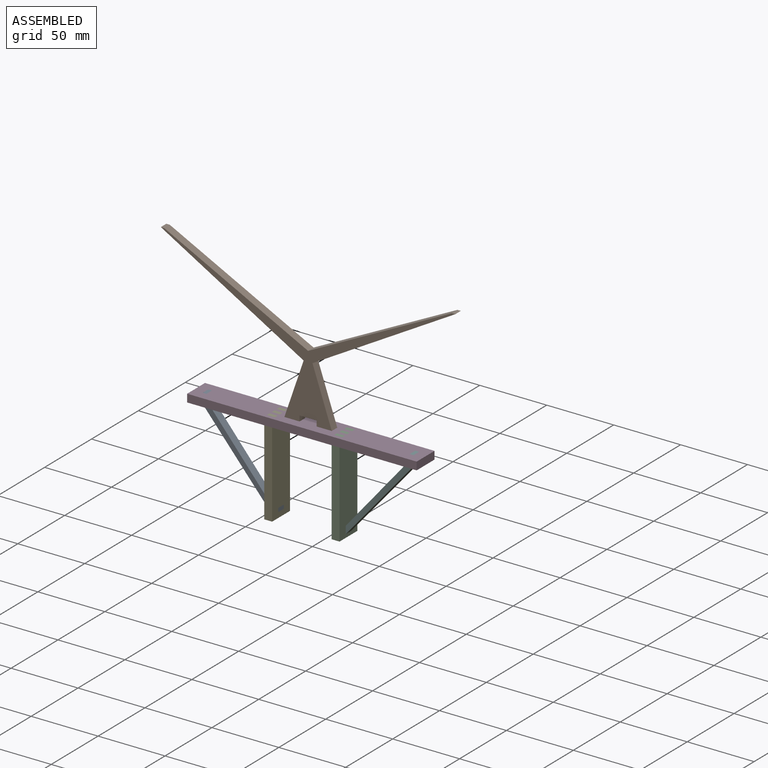
[diagram: assembled view]
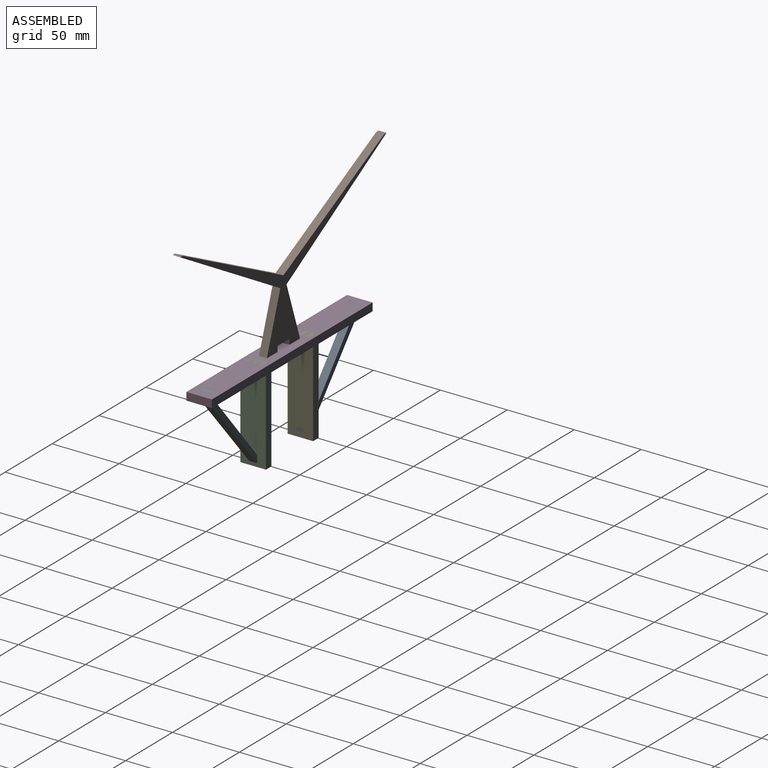
[diagram: assembled view, second angle]
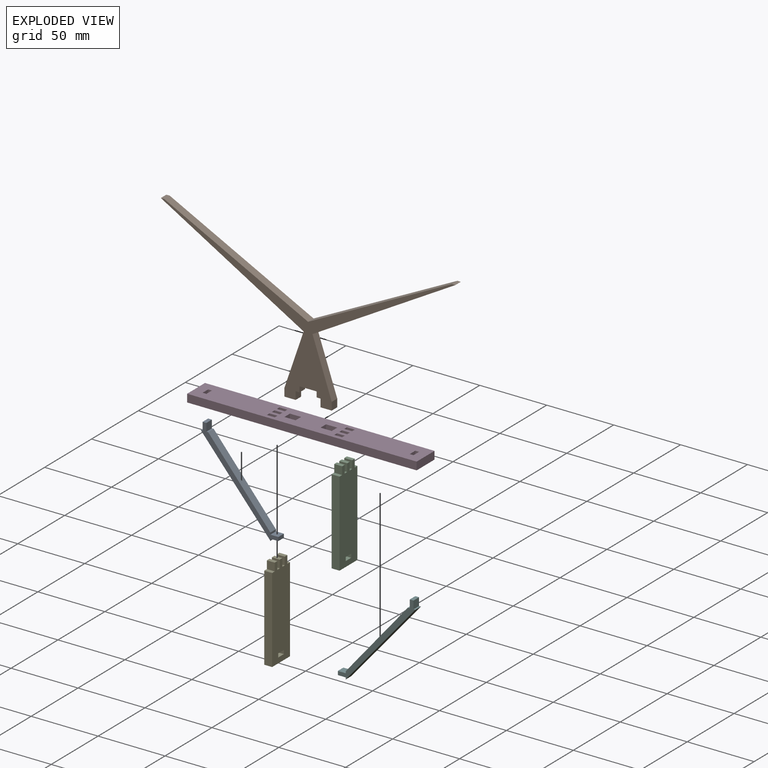
[diagram: exploded view]
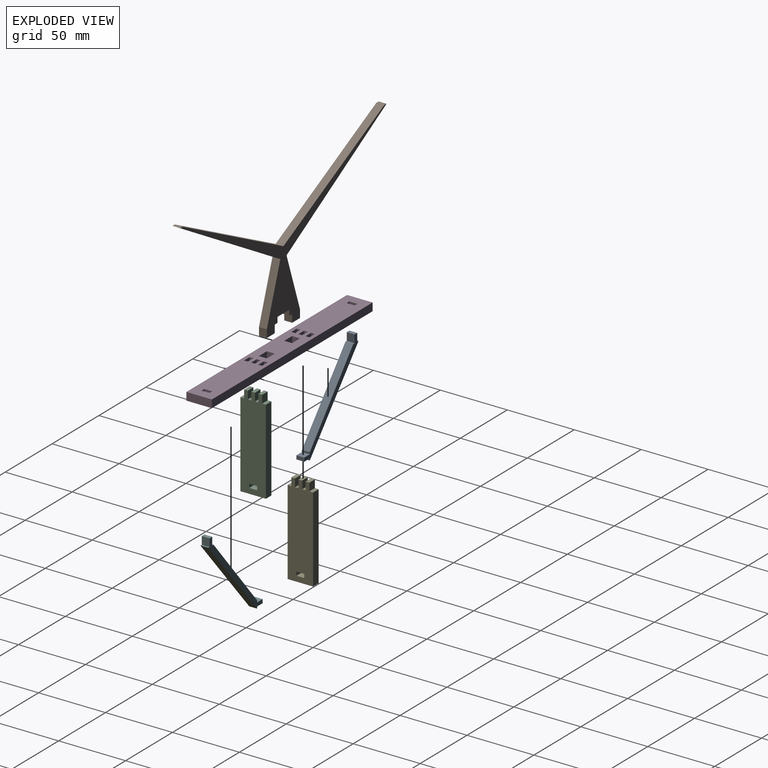
[diagram: exploded view, second angle]
ASSEMBLY  parts=6 mates=5
PART A: 14 faces, bbox 57.9x5.9x66.8 mm
  f0: plane 5.89x5.89mm, normal (-1,0,0), area 34.7mm2, adj f1,f11,f12,f13
  f1: plane 5.89x1.4mm, normal (0,0,1), area 8.2mm2, adj f0,f2,f12,f13
  f2: plane 55.34x46.46mm, normal (-0.77,0,0.64), area 425.8mm2, adj f1,f3,f12,f13
  f3: plane 5.89x1.4mm, normal (-1,0,0), area 8.2mm2, adj f2,f4,f12,f13
  f4: plane 5.89x5.89mm, normal (0,0,1), area 34.7mm2, adj f3,f5,f12,f13
  f5: plane 5.89x2.79mm, normal (-1,0,0), area 16.5mm2, adj f4,f6,f12,f13
  f6: plane 5.89x5.89mm, normal (0,0,-1), area 34.7mm2, adj f5,f7,f12,f13
  f7: plane 5.89x1.4mm, normal (-1,0,0), area 8.2mm2, adj f6,f8,f12,f13
  f8: plane 60.93x52.04mm, normal (0.76,0,-0.65), area 472.2mm2, adj f7,f9,f12,f13
  f9: plane 5.89x1.4mm, normal (0,0,1), area 8.2mm2, adj f8,f10,f12,f13
  f10: plane 5.89x5.89mm, normal (1,0,0), area 34.7mm2, adj f9,f11,f12,f13
  f11: plane 5.89x2.79mm, normal (0,0,1), area 16.5mm2, adj f0,f10,f12,f13
  f12: plane 66.82x57.94mm, normal (0,-1,0), area 333mm2, adj f0,f1,f2,f3,f4,f5,f6,f7
  f13: plane 66.82x57.94mm, normal (0,1,0), area 333mm2, adj f0,f1,f2,f3,f4,f5,f6,f7
PART B: 21 faces, bbox 220x5.9x109.4 mm
  f0: plane 106.69x61.6mm, normal (-0.5,0,-0.87), area 725.9mm2, adj f1,f18,f19,f20
  f1: plane 41.93x14.38mm, normal (-0.95,0,0.32), area 261.2mm2, adj f0,f2,f19,f20
  f2: plane 5.89x5.89mm, normal (-1,0,0), area 34.7mm2, adj f1,f3,f19,f20
  f3: plane 8.38x5.89mm, normal (0,0,-1), area 49.4mm2, adj f2,f4,f19,f20
  f4: plane 5.89x5.89mm, normal (1,0,0), area 34.7mm2, adj f3,f5,f19,f20
  f5: plane 5.89x2.95mm, normal (0,0,-1), area 17.4mm2, adj f4,f6,f19,f20
  f6: plane 5.89x4.06mm, normal (1,0,0), area 23.9mm2, adj f5,f7,f19,f20
  f7: plane 12.7x5.89mm, normal (0,0,-1), area 74.8mm2, adj f6,f8,f19,f20
  f8: plane 5.89x4.06mm, normal (-1,0,0), area 23.9mm2, adj f7,f9,f19,f20
  f9: plane 5.89x2.95mm, normal (0,0,-1), area 17.4mm2, adj f8,f10,f19,f20
  f10: plane 5.89x5.89mm, normal (-1,0,0), area 34.7mm2, adj f9,f11,f19,f20
  f11: plane 8.38x5.89mm, normal (0,0,-1), area 49.4mm2, adj f10,f12,f19,f20
  f12: plane 5.89x5.89mm, normal (1,0,0), area 34.7mm2, adj f11,f13,f19,f20
  f13: plane 41.93x14.38mm, normal (0.95,0,0.32), area 261.2mm2, adj f12,f14,f19,f20
  f14: plane 106.69x61.6mm, normal (0.5,0,-0.87), area 725.9mm2, adj f13,f15,f19,f20
  f15: plane 5.89x2.54mm, normal (0,0,1), area 15mm2, adj f14,f16,f19,f20
  f16: plane 107.45x54.18mm, normal (-0.45,0,0.89), area 709.1mm2, adj f15,f17,f19,f20
  f17: plane 107.45x54.18mm, normal (0.45,0,0.89), area 709.1mm2, adj f16,f18,f19,f20
  f18: plane 5.89x2.54mm, normal (0,0,1), area 15mm2, adj f0,f17,f19,f20
  f19: plane 219.97x109.42mm, normal (0,-1,0), area 2083.3mm2, adj f0,f1,f2,f3,f4,f5,f6,f7
  f20: plane 219.97x109.42mm, normal (0,1,0), area 2083.3mm2, adj f0,f1,f2,f3,f4,f5,f6,f7
PART C: 22 faces, bbox 5.9x19.1x69.4 mm
  f0: plane 5.89x5.89mm, normal (0,0,1), area 34.7mm2, adj f1,f19,f20,f21
  f1: plane 5.89x2.79mm, normal (0,1,0), area 16.5mm2, adj f0,f2,f20,f21
  f2: plane 5.89x5.89mm, normal (0,0,-1), area 34.7mm2, adj f1,f19,f20,f21
  f3: plane 5.89x5.89mm, normal (0,-1,0), area 34.7mm2, adj f4,f18,f20,f21
  f4: plane 5.89x2.79mm, normal (0,0,1), area 16.5mm2, adj f3,f5,f20,f21
  f5: plane 63.5x5.89mm, normal (0,-1,0), area 374.2mm2, adj f4,f6,f20,f21
  f6: plane 19.05x5.89mm, normal (0,0,-1), area 112.3mm2, adj f5,f7,f20,f21
  f7: plane 63.5x5.89mm, normal (0,1,0), area 374.2mm2, adj f6,f8,f20,f21
  f8: plane 5.89x2.79mm, normal (0,0,1), area 16.5mm2, adj f7,f9,f20,f21
  f9: plane 5.89x5.89mm, normal (0,1,0), area 34.7mm2, adj f8,f10,f20,f21
  f10: plane 5.89x2.79mm, normal (0,0,1), area 16.5mm2, adj f9,f11,f20,f21
  f11: plane 5.89x5.89mm, normal (0,-1,0), area 34.7mm2, adj f10,f12,f20,f21
  f12: plane 5.89x2.54mm, normal (0,0,1), area 15mm2, adj f11,f13,f20,f21
  f13: plane 5.89x5.89mm, normal (0,1,0), area 34.7mm2, adj f12,f14,f20,f21
  f14: plane 5.89x2.79mm, normal (0,0,1), area 16.5mm2, adj f13,f15,f20,f21
  f15: plane 5.89x5.89mm, normal (0,-1,0), area 34.7mm2, adj f14,f16,f20,f21
  f16: plane 5.89x2.54mm, normal (0,0,1), area 15mm2, adj f15,f17,f20,f21
  f17: plane 5.89x5.89mm, normal (0,1,0), area 34.7mm2, adj f16,f18,f20,f21
  f18: plane 5.89x2.79mm, normal (0,0,1), area 16.5mm2, adj f3,f17,f20,f21
  f19: plane 5.89x2.79mm, normal (0,-1,0), area 16.5mm2, adj f0,f2,f20,f21
  f20: plane 69.39x19.05mm, normal (1,0,0), area 1242.6mm2, adj f0,f1,f2,f3,f4,f5,f6,f7
  f21: plane 69.39x19.05mm, normal (-1,0,0), area 1242.6mm2, adj f0,f1,f2,f3,f4,f5,f6,f7
PART D: 46 faces, bbox 171.5x19.1x5.9 mm
  f0: plane 5.89x5.89mm, normal (0,-1,0), area 34.7mm2, adj f1,f43,f44,f45
  f1: plane 5.89x2.79mm, normal (-1,0,0), area 16.5mm2, adj f0,f2,f44,f45
  f2: plane 5.89x5.89mm, normal (0,1,0), area 34.7mm2, adj f1,f43,f44,f45
  f3: plane 5.89x5.89mm, normal (0,-1,0), area 34.7mm2, adj f4,f33,f44,f45
  f4: plane 5.89x2.79mm, normal (-1,0,0), area 16.5mm2, adj f3,f5,f44,f45
  f5: plane 5.89x5.89mm, normal (0,1,0), area 34.7mm2, adj f4,f33,f44,f45
  f6: plane 5.89x5.89mm, normal (-1,0,0), area 34.7mm2, adj f7,f34,f44,f45
  f7: plane 5.89x2.79mm, normal (0,1,0), area 16.5mm2, adj f6,f8,f44,f45
  f8: plane 5.89x5.89mm, normal (1,0,0), area 34.7mm2, adj f7,f34,f44,f45
  f9: plane 5.89x5.89mm, normal (0,-1,0), area 34.7mm2, adj f10,f35,f44,f45
  f10: plane 5.89x2.79mm, normal (-1,0,0), area 16.5mm2, adj f9,f11,f44,f45
  f11: plane 5.89x5.89mm, normal (0,1,0), area 34.7mm2, adj f10,f35,f44,f45
  f12: plane 8.38x5.89mm, normal (0,-1,0), area 49.4mm2, adj f13,f36,f44,f45
  f13: plane 5.89x5.89mm, normal (-1,0,0), area 34.7mm2, adj f12,f14,f44,f45
  f14: plane 8.38x5.89mm, normal (0,1,0), area 49.4mm2, adj f13,f36,f44,f45
  f15: plane 5.89x5.89mm, normal (0,-1,0), area 34.7mm2, adj f16,f37,f44,f45
  f16: plane 5.89x2.79mm, normal (-1,0,0), area 16.5mm2, adj f15,f17,f44,f45
  f17: plane 5.89x5.89mm, normal (0,1,0), area 34.7mm2, adj f16,f37,f44,f45
  f18: plane 5.89x5.89mm, normal (0,-1,0), area 34.7mm2, adj f19,f38,f44,f45
  f19: plane 5.89x2.79mm, normal (-1,0,0), area 16.5mm2, adj f18,f20,f44,f45
  f20: plane 5.89x5.89mm, normal (0,1,0), area 34.7mm2, adj f19,f38,f44,f45
  f21: plane 5.89x5.89mm, normal (0,1,0), area 34.7mm2, adj f22,f39,f44,f45
  f22: plane 5.89x2.79mm, normal (1,0,0), area 16.5mm2, adj f21,f23,f44,f45
  f23: plane 5.89x5.89mm, normal (0,-1,0), area 34.7mm2, adj f22,f39,f44,f45
  f24: plane 5.89x5.89mm, normal (1,0,0), area 34.7mm2, adj f25,f40,f44,f45
  f25: plane 8.38x5.89mm, normal (0,-1,0), area 49.4mm2, adj f24,f26,f44,f45
  f26: plane 5.89x5.89mm, normal (-1,0,0), area 34.7mm2, adj f25,f40,f44,f45
  f27: plane 5.89x5.89mm, normal (-1,0,0), area 34.7mm2, adj f28,f41,f44,f45
  f28: plane 5.89x2.79mm, normal (0,1,0), area 16.5mm2, adj f27,f29,f44,f45
  f29: plane 5.89x5.89mm, normal (1,0,0), area 34.7mm2, adj f28,f41,f44,f45
  f30: plane 171.45x5.89mm, normal (0,-1,0), area 1010.3mm2, adj f31,f42,f44,f45
  f31: plane 19.05x5.89mm, normal (1,0,0), area 112.3mm2, adj f30,f32,f44,f45
  f32: plane 171.45x5.89mm, normal (0,1,0), area 1010.3mm2, adj f31,f42,f44,f45
  f33: plane 5.89x2.79mm, normal (1,0,0), area 16.5mm2, adj f3,f5,f44,f45
  f34: plane 5.89x2.79mm, normal (0,-1,0), area 16.5mm2, adj f6,f8,f44,f45
  f35: plane 5.89x2.79mm, normal (1,0,0), area 16.5mm2, adj f9,f11,f44,f45
  f36: plane 5.89x5.89mm, normal (1,0,0), area 34.7mm2, adj f12,f14,f44,f45
  f37: plane 5.89x2.79mm, normal (1,0,0), area 16.5mm2, adj f15,f17,f44,f45
  f38: plane 5.89x2.79mm, normal (1,0,0), area 16.5mm2, adj f18,f20,f44,f45
  f39: plane 5.89x2.79mm, normal (-1,0,0), area 16.5mm2, adj f21,f23,f44,f45
  f40: plane 8.38x5.89mm, normal (0,1,0), area 49.4mm2, adj f24,f26,f44,f45
  f41: plane 5.89x2.79mm, normal (0,-1,0), area 16.5mm2, adj f27,f29,f44,f45
  f42: plane 19.05x5.89mm, normal (-1,0,0), area 112.3mm2, adj f30,f32,f44,f45
  f43: plane 5.89x2.79mm, normal (1,0,0), area 16.5mm2, adj f0,f2,f44,f45
  f44: plane 171.45x19.05mm, normal (0,0,1), area 3035.6mm2, adj f0,f1,f2,f3,f4,f5,f6,f7
  f45: plane 171.45x19.05mm, normal (0,0,-1), area 3035.6mm2, adj f0,f1,f2,f3,f4,f5,f6,f7
PART E: same geometry as C
PART F: same geometry as A
PLACE A rot(axis=(0,0,1),180deg) t=(-23.37,42.15,116.64)mm
PLACE B t=(-26.66,48.04,105.96)mm
PLACE C t=(-20.44,-24.68,-3.17)mm
PLACE D t=(-39.91,16.69,58.14)mm
PLACE E t=(-70.78,-24.68,-3.17)mm
PLACE F t=(-61.95,48.04,116.64)mm
MATE fastened E.f14 <-> D.f44  axis (0,0,1) through (-64.89,46.49,64.03)mm
MATE fastened F.f11 <-> D.f44  axis (0,0,1) through (33.31,48.04,64.03)mm
MATE fastened B.f3 <-> D.f45  axis (0,0,-1) through (-60.34,48.04,58.14)mm
MATE fastened C.f10 <-> D.f44  axis (0,0,1) through (-20.44,51.83,64.03)mm
MATE fastened A.f11 <-> D.f44  axis (0,0,1) through (-121.43,42.15,64.03)mm
